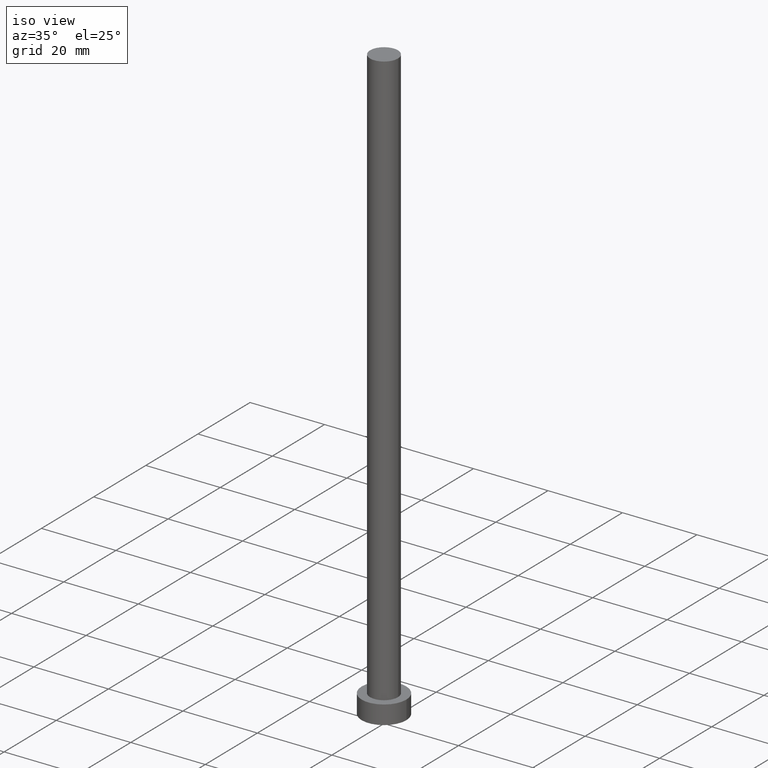
[diagram: clean part render]
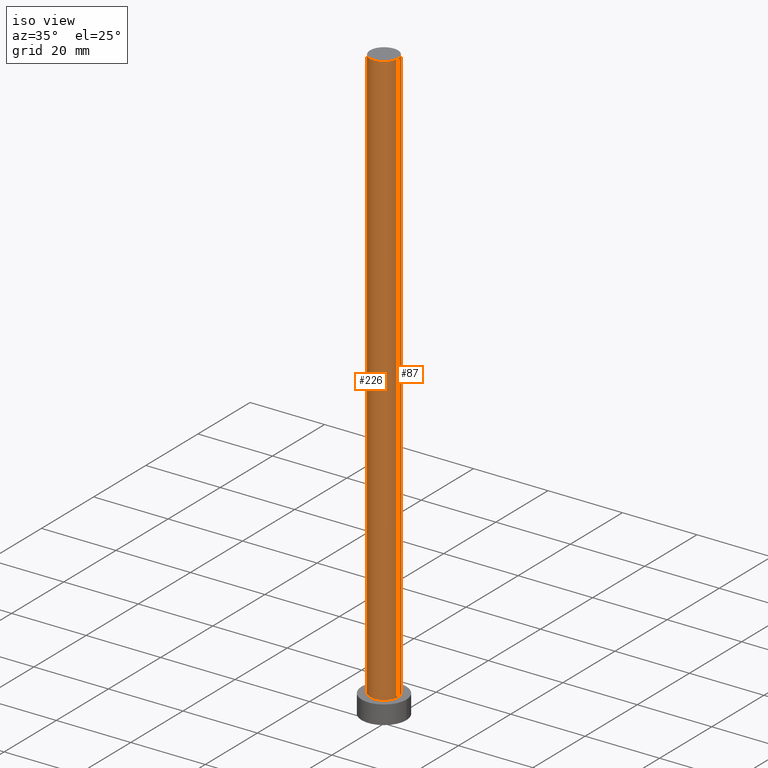
[diagram: same view with one multi-face feature highlighted, each face labeled with its STEP entity id]
A machine part, iso view. The highlighted faces form ONE feature: a constant-radius fillet chain: 2 tangent blend faces with common blend radius 3.75 mm. The faces share edges in the B-rep.
Their STEP definitions:
[1] entity #87 (Cylinder):
#7 = DIRECTION ( 'NONE',  ( -0.000000000000000000, -0.000000000000000000, -1.000000000000000000 ) ) ;
#10 = DIRECTION ( 'NONE',  ( 1.000000000000000000, 0.000000000000000000, 0.000000000000000000 ) ) ;
#12 = VECTOR ( 'NONE', #205, 1000.000000000000000 ) ;
#13 = VERTEX_POINT ( 'NONE', #117 ) ;
#14 = VERTEX_POINT ( 'NONE', #198 ) ;
#26 = CYLINDRICAL_SURFACE ( 'NONE', #62, 3.750000000000000000 ) ;
#32 = EDGE_LOOP ( 'NONE', ( #213, #135, #177, #67 ) ) ;
#36 = DIRECTION ( 'NONE',  ( -0.000000000000000000, -0.000000000000000000, -1.000000000000000000 ) ) ;
#40 = EDGE_CURVE ( 'NONE', #13, #14, #254, .T. ) ;
#45 = CARTESIAN_POINT ( 'NONE',  ( -3.750000000000000000, 0.000000000000000000, 5.000000000000000000 ) ) ;
#50 = EDGE_CURVE ( 'NONE', #13, #153, #137, .T. ) ;
#52 = DIRECTION ( 'NONE',  ( 0.000000000000000000, 0.000000000000000000, 1.000000000000000000 ) ) ;
#54 = AXIS2_PLACEMENT_3D ( 'NONE', #129, #190, #10 ) ;
#61 = DIRECTION ( 'NONE',  ( -1.000000000000000000, 0.000000000000000000, 0.000000000000000000 ) ) ;
#62 = AXIS2_PLACEMENT_3D ( 'NONE', #220, #7, #61 ) ;
#67 = ORIENTED_EDGE ( 'NONE', *, *, #142, .F. ) ;
#83 = CARTESIAN_POINT ( 'NONE',  ( 3.750000000000000000, 4.592425496802573972E-16, 5.000000000000000000 ) ) ;
#87 = ADVANCED_FACE ( 'NONE', ( #224 ), #26, .T. ) ;
#89 = VERTEX_POINT ( 'NONE', #45 ) ;
#96 = VECTOR ( 'NONE', #36, 1000.000000000000000 ) ;
#117 = CARTESIAN_POINT ( 'NONE',  ( 3.750000000000000000, 4.592425496802573972E-16, 160.0000000000000000 ) ) ;
#129 = CARTESIAN_POINT ( 'NONE',  ( 0.000000000000000000, 0.000000000000000000, 5.000000000000000000 ) ) ;
#135 = ORIENTED_EDGE ( 'NONE', *, *, #50, .T. ) ;
#137 = LINE ( 'NONE', #216, #96 ) ;
#142 = EDGE_CURVE ( 'NONE', #14, #89, #160, .T. ) ;
#153 = VERTEX_POINT ( 'NONE', #83 ) ;
#160 = LINE ( 'NONE', #163, #12 ) ;
#163 = CARTESIAN_POINT ( 'NONE',  ( -3.750000000000000000, 0.000000000000000000, 160.0000000000000000 ) ) ;
#169 = CIRCLE ( 'NONE', #54, 3.750000000000000000 ) ;
#177 = ORIENTED_EDGE ( 'NONE', *, *, #219, .T. ) ;
#182 = AXIS2_PLACEMENT_3D ( 'NONE', #233, #52, #234 ) ;
#190 = DIRECTION ( 'NONE',  ( 0.000000000000000000, 0.000000000000000000, 1.000000000000000000 ) ) ;
#198 = CARTESIAN_POINT ( 'NONE',  ( -3.750000000000000000, 0.000000000000000000, 160.0000000000000000 ) ) ;
#205 = DIRECTION ( 'NONE',  ( -0.000000000000000000, -0.000000000000000000, -1.000000000000000000 ) ) ;
#213 = ORIENTED_EDGE ( 'NONE', *, *, #40, .F. ) ;
#216 = CARTESIAN_POINT ( 'NONE',  ( 3.750000000000000000, 4.592425496802573972E-16, 160.0000000000000000 ) ) ;
#219 = EDGE_CURVE ( 'NONE', #153, #89, #169, .T. ) ;
#220 = CARTESIAN_POINT ( 'NONE',  ( 0.000000000000000000, 0.000000000000000000, 160.0000000000000000 ) ) ;
#224 = FACE_OUTER_BOUND ( 'NONE', #32, .T. ) ;
#233 = CARTESIAN_POINT ( 'NONE',  ( 0.000000000000000000, 0.000000000000000000, 160.0000000000000000 ) ) ;
#234 = DIRECTION ( 'NONE',  ( 1.000000000000000000, 0.000000000000000000, 0.000000000000000000 ) ) ;
#254 = CIRCLE ( 'NONE', #182, 3.750000000000000000 ) ;
[2] entity #226 (Cylinder):
#2 = EDGE_CURVE ( 'NONE', #14, #13, #255, .T. ) ;
#6 = CYLINDRICAL_SURFACE ( 'NONE', #100, 3.750000000000000000 ) ;
#12 = VECTOR ( 'NONE', #205, 1000.000000000000000 ) ;
#13 = VERTEX_POINT ( 'NONE', #117 ) ;
#14 = VERTEX_POINT ( 'NONE', #198 ) ;
#25 = FACE_OUTER_BOUND ( 'NONE', #231, .T. ) ;
#27 = DIRECTION ( 'NONE',  ( -1.000000000000000000, 0.000000000000000000, 0.000000000000000000 ) ) ;
#35 = ORIENTED_EDGE ( 'NONE', *, *, #56, .T. ) ;
#36 = DIRECTION ( 'NONE',  ( -0.000000000000000000, -0.000000000000000000, -1.000000000000000000 ) ) ;
#37 = DIRECTION ( 'NONE',  ( 1.000000000000000000, 0.000000000000000000, 0.000000000000000000 ) ) ;
#45 = CARTESIAN_POINT ( 'NONE',  ( -3.750000000000000000, 0.000000000000000000, 5.000000000000000000 ) ) ;
#48 = ORIENTED_EDGE ( 'NONE', *, *, #2, .F. ) ;
#50 = EDGE_CURVE ( 'NONE', #13, #153, #137, .T. ) ;
#56 = EDGE_CURVE ( 'NONE', #89, #153, #202, .T. ) ;
#57 = AXIS2_PLACEMENT_3D ( 'NONE', #102, #186, #238 ) ;
#83 = CARTESIAN_POINT ( 'NONE',  ( 3.750000000000000000, 4.592425496802573972E-16, 5.000000000000000000 ) ) ;
#89 = VERTEX_POINT ( 'NONE', #45 ) ;
#96 = VECTOR ( 'NONE', #36, 1000.000000000000000 ) ;
#100 = AXIS2_PLACEMENT_3D ( 'NONE', #108, #130, #27 ) ;
#102 = CARTESIAN_POINT ( 'NONE',  ( 0.000000000000000000, 0.000000000000000000, 5.000000000000000000 ) ) ;
#108 = CARTESIAN_POINT ( 'NONE',  ( 0.000000000000000000, 0.000000000000000000, 160.0000000000000000 ) ) ;
#112 = ORIENTED_EDGE ( 'NONE', *, *, #50, .F. ) ;
#116 = DIRECTION ( 'NONE',  ( 0.000000000000000000, 0.000000000000000000, 1.000000000000000000 ) ) ;
#117 = CARTESIAN_POINT ( 'NONE',  ( 3.750000000000000000, 4.592425496802573972E-16, 160.0000000000000000 ) ) ;
#130 = DIRECTION ( 'NONE',  ( -0.000000000000000000, -0.000000000000000000, -1.000000000000000000 ) ) ;
#137 = LINE ( 'NONE', #216, #96 ) ;
#139 = CARTESIAN_POINT ( 'NONE',  ( 0.000000000000000000, 0.000000000000000000, 160.0000000000000000 ) ) ;
#142 = EDGE_CURVE ( 'NONE', #14, #89, #160, .T. ) ;
#153 = VERTEX_POINT ( 'NONE', #83 ) ;
#160 = LINE ( 'NONE', #163, #12 ) ;
#163 = CARTESIAN_POINT ( 'NONE',  ( -3.750000000000000000, 0.000000000000000000, 160.0000000000000000 ) ) ;
#179 = AXIS2_PLACEMENT_3D ( 'NONE', #139, #116, #37 ) ;
#186 = DIRECTION ( 'NONE',  ( 0.000000000000000000, 0.000000000000000000, 1.000000000000000000 ) ) ;
#198 = CARTESIAN_POINT ( 'NONE',  ( -3.750000000000000000, 0.000000000000000000, 160.0000000000000000 ) ) ;
#202 = CIRCLE ( 'NONE', #57, 3.750000000000000000 ) ;
#205 = DIRECTION ( 'NONE',  ( -0.000000000000000000, -0.000000000000000000, -1.000000000000000000 ) ) ;
#216 = CARTESIAN_POINT ( 'NONE',  ( 3.750000000000000000, 4.592425496802573972E-16, 160.0000000000000000 ) ) ;
#226 = ADVANCED_FACE ( 'NONE', ( #25 ), #6, .T. ) ;
#230 = ORIENTED_EDGE ( 'NONE', *, *, #142, .T. ) ;
#231 = EDGE_LOOP ( 'NONE', ( #112, #48, #230, #35 ) ) ;
#238 = DIRECTION ( 'NONE',  ( 1.000000000000000000, 0.000000000000000000, 0.000000000000000000 ) ) ;
#255 = CIRCLE ( 'NONE', #179, 3.750000000000000000 ) ;